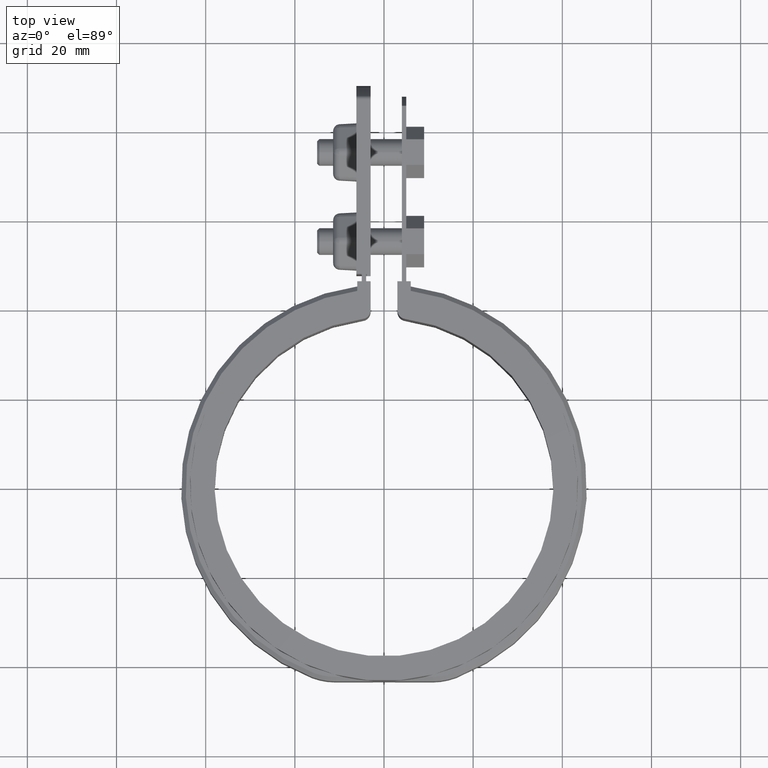
[diagram: clean part render]
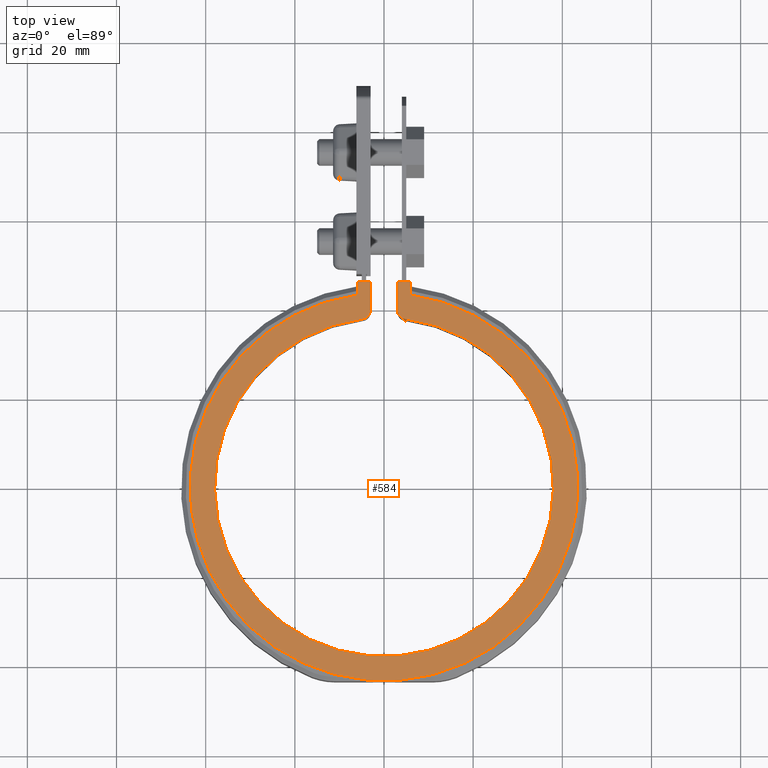
[diagram: same view with one face highlighted and labeled with its STEP entity id]
A machine part, top view. The second image highlights one B-rep face of the part: STEP entity #584.
In plain terms, the highlighted planar face has unit normal (0, 0, -1).
Its self-contained STEP definition (entity closure, byte-faithful):
#584 = ADVANCED_FACE( '', ( #1098 ), #1099, .F. );
#1098 = FACE_OUTER_BOUND( '', #2358, .T. );
#1099 = PLANE( '', #2359 );
#2358 = EDGE_LOOP( '', ( #5469, #5470, #5471, #5472, #5473, #5474, #5475, #5476, #5477, #5478 ) );
#2359 = AXIS2_PLACEMENT_3D( '', #5479, #5480, #5481 );
#5469 = ORIENTED_EDGE( '', *, *, #7822, .F. );
#5470 = ORIENTED_EDGE( '', *, *, #7736, .T. );
#5471 = ORIENTED_EDGE( '', *, *, #7902, .T. );
#5472 = ORIENTED_EDGE( '', *, *, #7926, .T. );
#5473 = ORIENTED_EDGE( '', *, *, #7927, .T. );
#5474 = ORIENTED_EDGE( '', *, *, #7883, .T. );
#5475 = ORIENTED_EDGE( '', *, *, #7877, .F. );
#5476 = ORIENTED_EDGE( '', *, *, #7873, .F. );
#5477 = ORIENTED_EDGE( '', *, *, #7846, .F. );
#5478 = ORIENTED_EDGE( '', *, *, #7758, .F. );
#5479 = CARTESIAN_POINT( '', ( 0.000000000000000, 0.000000000000000, 14.0000000000000 ) );
#5480 = DIRECTION( '', ( 0.000000000000000, 0.000000000000000, -1.00000000000000 ) );
#5481 = DIRECTION( '', ( 0.000000000000000, -1.00000000000000, 0.000000000000000 ) );
#7736 = EDGE_CURVE( '', #8914, #8912, #8915, .F. );
#7758 = EDGE_CURVE( '', #8952, #8943, #8954, .T. );
#7822 = EDGE_CURVE( '', #8914, #8952, #9065, .T. );
#7846 = EDGE_CURVE( '', #8943, #9101, #9102, .T. );
#7873 = EDGE_CURVE( '', #9101, #9144, #9145, .T. );
#7877 = EDGE_CURVE( '', #9144, #9150, #9151, .T. );
#7883 = EDGE_CURVE( '', #9160, #9150, #9161, .F. );
#7902 = EDGE_CURVE( '', #8912, #9188, #9190, .F. );
#7926 = EDGE_CURVE( '', #9188, #9220, #9221, .T. );
#7927 = EDGE_CURVE( '', #9220, #9160, #9222, .F. );
#8912 = VERTEX_POINT( '', #12133 );
#8914 = VERTEX_POINT( '', #12136 );
#8915 = LINE( '', #12137, #12138 );
#8943 = VERTEX_POINT( '', #12189 );
#8952 = VERTEX_POINT( '', #12205 );
#8954 = LINE( '', #12208, #12209 );
#9065 = LINE( '', #12756, #12757 );
#9101 = VERTEX_POINT( '', #12819 );
#9102 = CIRCLE( '', #12820, 43.5000000000000 );
#9144 = VERTEX_POINT( '', #12878 );
#9145 = LINE( '', #12879, #12880 );
#9150 = VERTEX_POINT( '', #12888 );
#9151 = LINE( '', #12889, #12890 );
#9160 = VERTEX_POINT( '', #12904 );
#9161 = LINE( '', #12905, #12906 );
#9188 = VERTEX_POINT( '', #12979 );
#9190 = CIRCLE( '', #12982, 2.00000000000000 );
#9220 = VERTEX_POINT( '', #13049 );
#9221 = CIRCLE( '', #13050, 38.0000000000000 );
#9222 = CIRCLE( '', #13051, 2.00000000000000 );
#12133 = CARTESIAN_POINT( '', ( 3.00000000000000, 39.6862696659689, 14.0000000000000 ) );
#12136 = CARTESIAN_POINT( '', ( 3.00000000000000, 46.1500000000000, 14.0000000000000 ) );
#12137 = CARTESIAN_POINT( '', ( 3.00000000000000, -1.82145964977564E-016, 14.0000000000000 ) );
#12138 = VECTOR( '', #14734, 1000.00000000000 );
#12189 = CARTESIAN_POINT( '', ( 6.00000000000000, 43.0842198490352, 14.0000000000000 ) );
#12205 = CARTESIAN_POINT( '', ( 6.00000000000000, 46.1500000000000, 14.0000000000000 ) );
#12208 = CARTESIAN_POINT( '', ( 6.00000000000000, 46.1500000000000, 14.0000000000000 ) );
#12209 = VECTOR( '', #14756, 1000.00000000000 );
#12756 = CARTESIAN_POINT( '', ( 4.99999999999997, 46.1500000000000, 14.0000000000000 ) );
#12757 = VECTOR( '', #14802, 1000.00000000000 );
#12819 = CARTESIAN_POINT( '', ( -6.00000000000000, 43.0842198490352, 14.0000000000000 ) );
#12820 = AXIS2_PLACEMENT_3D( '', #14831, #14832, #14833 );
#12878 = CARTESIAN_POINT( '', ( -6.00000000000000, 46.1500000000000, 14.0000000000000 ) );
#12879 = CARTESIAN_POINT( '', ( -6.00000000000000, 43.0842198490352, 14.0000000000000 ) );
#12880 = VECTOR( '', #14883, 1000.00000000000 );
#12888 = CARTESIAN_POINT( '', ( -3.00000000000002, 46.1500000000000, 14.0000000000000 ) );
#12889 = CARTESIAN_POINT( '', ( -6.00000000000001, 46.1500000000000, 14.0000000000000 ) );
#12890 = VECTOR( '', #14887, 1000.00000000000 );
#12904 = CARTESIAN_POINT( '', ( -3.00000000000002, 39.6862696659689, 14.0000000000000 ) );
#12905 = CARTESIAN_POINT( '', ( -3.00000000000002, 1.82145964977566E-016, 14.0000000000000 ) );
#12906 = VECTOR( '', #14893, 1000.00000000000 );
#12979 = CARTESIAN_POINT( '', ( 4.75000000000000, 37.7019561826704, 14.0000000000000 ) );
#12982 = AXIS2_PLACEMENT_3D( '', #14907, #14908, #14909 );
#13049 = CARTESIAN_POINT( '', ( -4.75000000000002, 37.7019561826704, 14.0000000000000 ) );
#13050 = AXIS2_PLACEMENT_3D( '', #14934, #14935, #14936 );
#13051 = AXIS2_PLACEMENT_3D( '', #14937, #14938, #14939 );
#14734 = DIRECTION( '', ( 6.07153216591882E-017, 1.00000000000000, 0.000000000000000 ) );
#14756 = DIRECTION( '', ( -6.07153216591882E-017, -1.00000000000000, 0.000000000000000 ) );
#14802 = DIRECTION( '', ( 1.00000000000000, 0.000000000000000, 0.000000000000000 ) );
#14831 = CARTESIAN_POINT( '', ( 0.000000000000000, 0.000000000000000, 14.0000000000000 ) );
#14832 = DIRECTION( '', ( 0.000000000000000, 0.000000000000000, -1.00000000000000 ) );
#14833 = DIRECTION( '', ( -1.00000000000000, 0.000000000000000, 0.000000000000000 ) );
#14883 = DIRECTION( '', ( 6.07153216591882E-017, 1.00000000000000, 0.000000000000000 ) );
#14887 = DIRECTION( '', ( 1.00000000000000, 0.000000000000000, 0.000000000000000 ) );
#14893 = DIRECTION( '', ( -6.07153216591882E-017, -1.00000000000000, 0.000000000000000 ) );
#14907 = CARTESIAN_POINT( '', ( 5.00000000000000, 39.6862696659689, 14.0000000000000 ) );
#14908 = DIRECTION( '', ( 0.000000000000000, 0.000000000000000, -1.00000000000000 ) );
#14909 = DIRECTION( '', ( -1.00000000000000, 0.000000000000000, 0.000000000000000 ) );
#14934 = CARTESIAN_POINT( '', ( 0.000000000000000, 0.000000000000000, 14.0000000000000 ) );
#14935 = DIRECTION( '', ( 0.000000000000000, 0.000000000000000, -1.00000000000000 ) );
#14936 = DIRECTION( '', ( -1.00000000000000, 0.000000000000000, 0.000000000000000 ) );
#14937 = CARTESIAN_POINT( '', ( -5.00000000000002, 39.6862696659689, 14.0000000000000 ) );
#14938 = DIRECTION( '', ( 0.000000000000000, 0.000000000000000, -1.00000000000000 ) );
#14939 = DIRECTION( '', ( -1.00000000000000, 0.000000000000000, 0.000000000000000 ) );